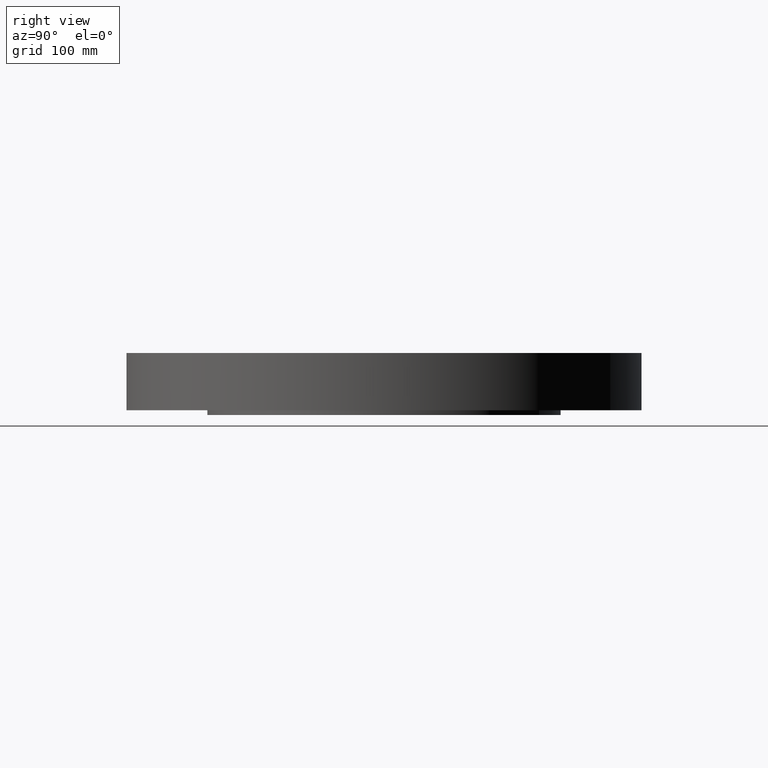
[diagram: clean part render]
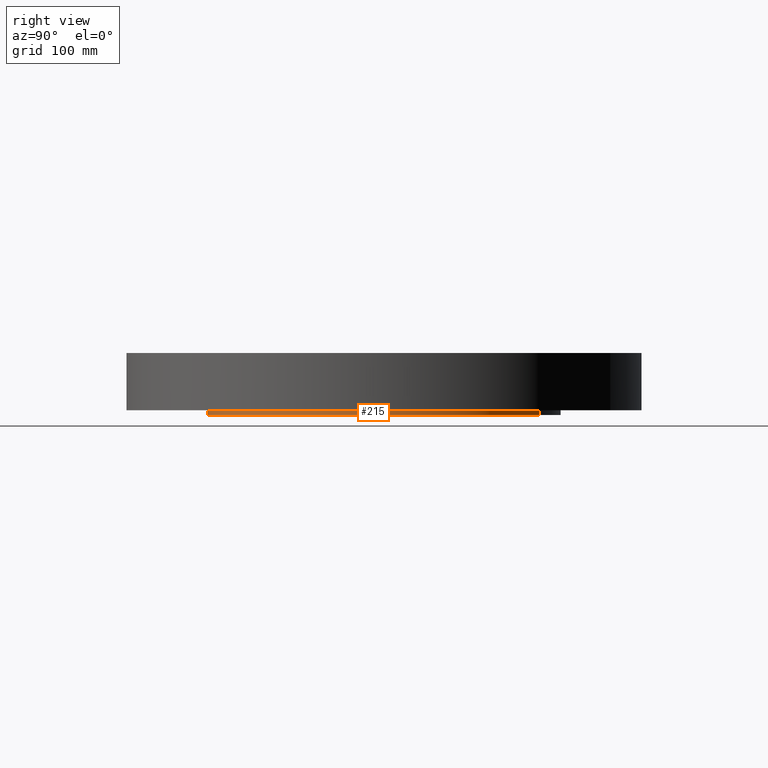
[diagram: same view with one face highlighted and labeled with its STEP entity id]
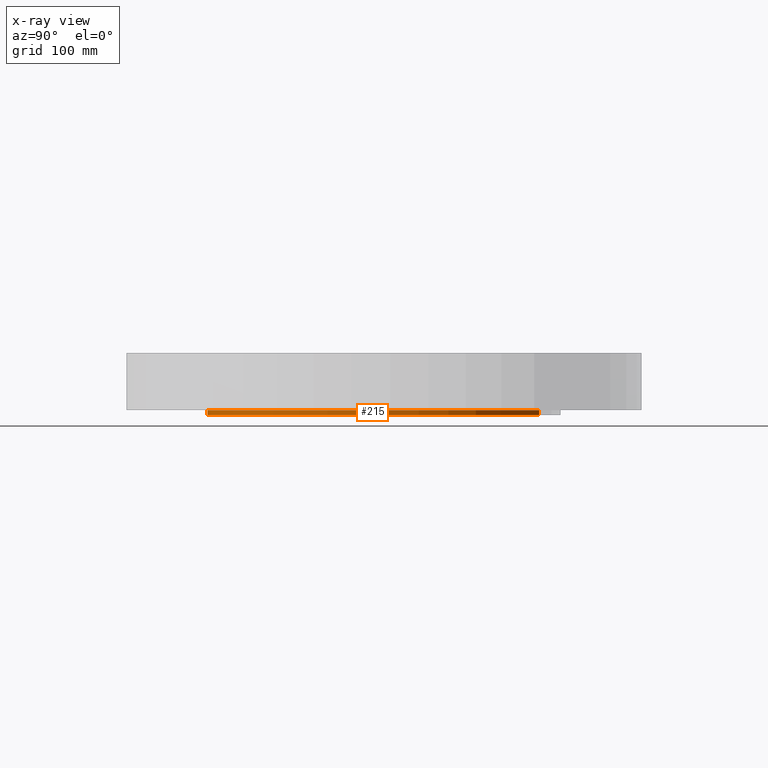
[diagram: x-ray of the same camera — body ghosted, the highlighted face saturated]
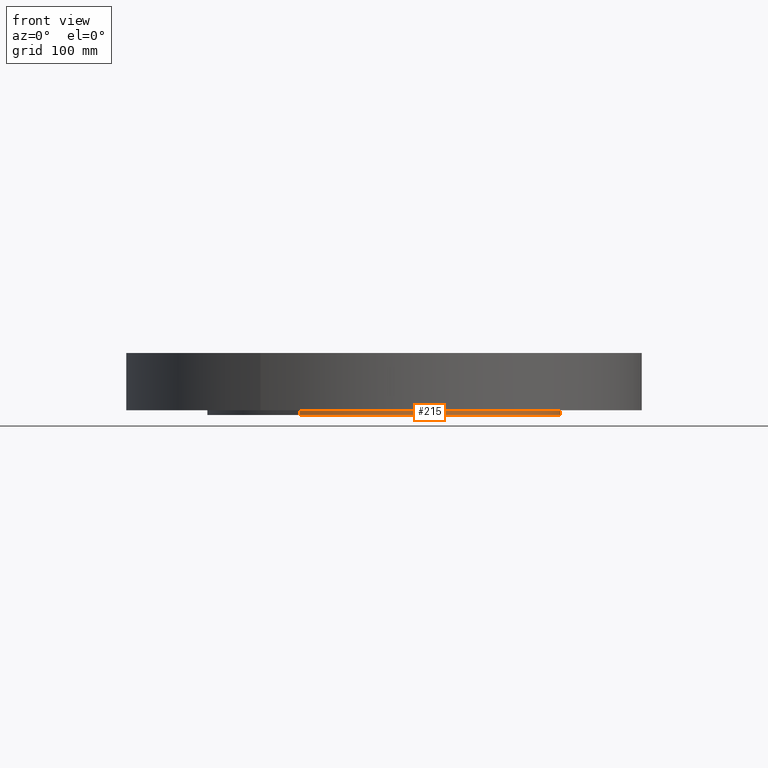
[diagram: same view with one face highlighted and labeled with its STEP entity id]
A machine part, right view. The second image highlights one B-rep face of the part: STEP entity #215.
The next image is the same camera in x-ray: the body ghosted, the highlighted face saturated — about 0% of this face is hidden behind the body in this view.
A second angle (front view) of the same face is appended — the face is thin or edge-on in the first view.
In plain terms, the highlighted cylindrical surface (partial cylindrical patch) has radius 234.95 mm, axis along (0, 0, -1).
Its self-contained STEP definition (entity closure, byte-faithful):
#156=AXIS2_PLACEMENT_3D('Circle Axis2P3D',#154,#155,$) ;
#176=AXIS2_PLACEMENT_3D('Cylinder Axis2P3D',#173,#174,#175) ;
#206=AXIS2_PLACEMENT_3D('Circle Axis2P3D',#204,#205,$) ;
#154=CARTESIAN_POINT('Axis2P3D Location',(0.,0.,-0.250000000001)) ;
#158=CARTESIAN_POINT('Vertex',(4.43468623211,8.11763869752,-0.250000000001)) ;
#160=CARTESIAN_POINT('Vertex',(-4.43468623211,-8.11763869752,-0.250000000001)) ;
#173=CARTESIAN_POINT('Axis2P3D Location',(0.,0.,1.37500000001)) ;
#178=CARTESIAN_POINT('Line Origine',(-4.43468623211,-8.11763869752,-0.125)) ;
#182=CARTESIAN_POINT('Vertex',(-4.43468623211,-8.11763869752,1.1189649382E-015)) ;
#189=CARTESIAN_POINT('Vertex',(4.43468623211,8.11763869752,1.1189649382E-015)) ;
#192=CARTESIAN_POINT('Line Origine',(4.43468623211,8.11763869752,-0.125)) ;
#204=CARTESIAN_POINT('Axis2P3D Location',(0.,0.,1.1189649382E-015)) ;
#155=DIRECTION('Axis2P3D Direction',(0.,0.,-0.0393700787402)) ;
#174=DIRECTION('Axis2P3D Direction',(0.,0.,-0.0393700787402)) ;
#175=DIRECTION('Axis2P3D XDirection',(0.0188750212049,0.0345504945626,0.)) ;
#179=DIRECTION('Vector Direction',(0.,0.,-0.0393700787402)) ;
#193=DIRECTION('Vector Direction',(0.,0.,-0.0393700787402)) ;
#205=DIRECTION('Axis2P3D Direction',(0.,0.,-0.0393700787402)) ;
#180=VECTOR('Line Direction',#179,0.0393700787402) ;
#194=VECTOR('Line Direction',#193,0.0393700787402) ;
#210=ORIENTED_EDGE('',*,*,#162,.F.) ;
#211=ORIENTED_EDGE('',*,*,#196,.T.) ;
#212=ORIENTED_EDGE('',*,*,#208,.T.) ;
#213=ORIENTED_EDGE('',*,*,#184,.F.) ;
#215=ADVANCED_FACE('PartBody',(#214),#177,.T.) ;
#157=CIRCLE('generated circle',#156,9.25000000004) ;
#207=CIRCLE('generated circle',#206,9.25000000004) ;
#177=CYLINDRICAL_SURFACE('generated cylinder',#176,9.25000000004) ;
#162=EDGE_CURVE('',#159,#161,#157,.T.) ;
#184=EDGE_CURVE('',#161,#183,#181,.F.) ;
#196=EDGE_CURVE('',#159,#190,#195,.F.) ;
#208=EDGE_CURVE('',#190,#183,#207,.T.) ;
#209=EDGE_LOOP('',(#210,#211,#212,#213)) ;
#214=FACE_OUTER_BOUND('',#209,.T.) ;
#181=LINE('Line',#178,#180) ;
#195=LINE('Line',#192,#194) ;
#159=VERTEX_POINT('',#158) ;
#161=VERTEX_POINT('',#160) ;
#183=VERTEX_POINT('',#182) ;
#190=VERTEX_POINT('',#189) ;